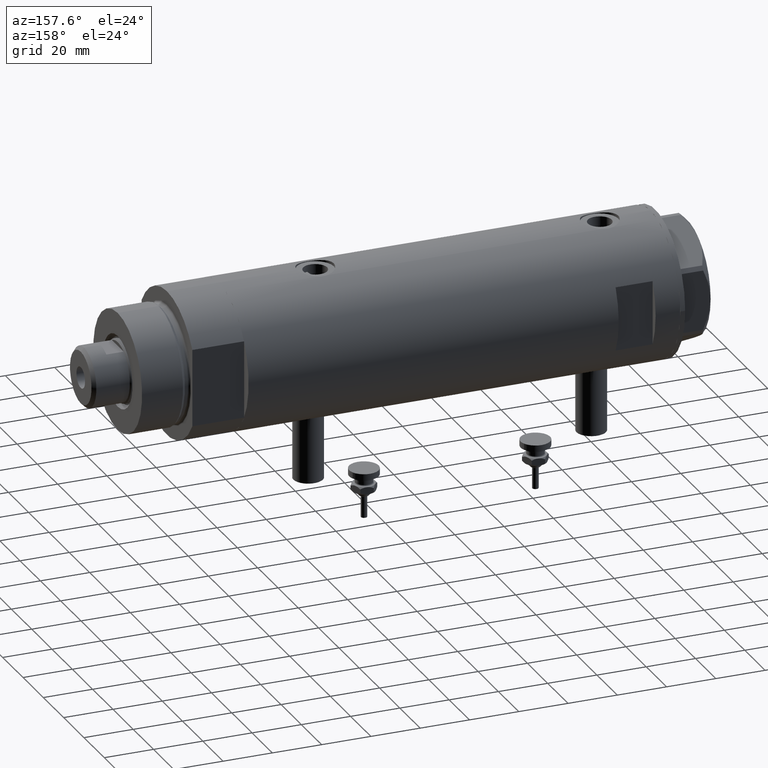
[diagram: clean part render]
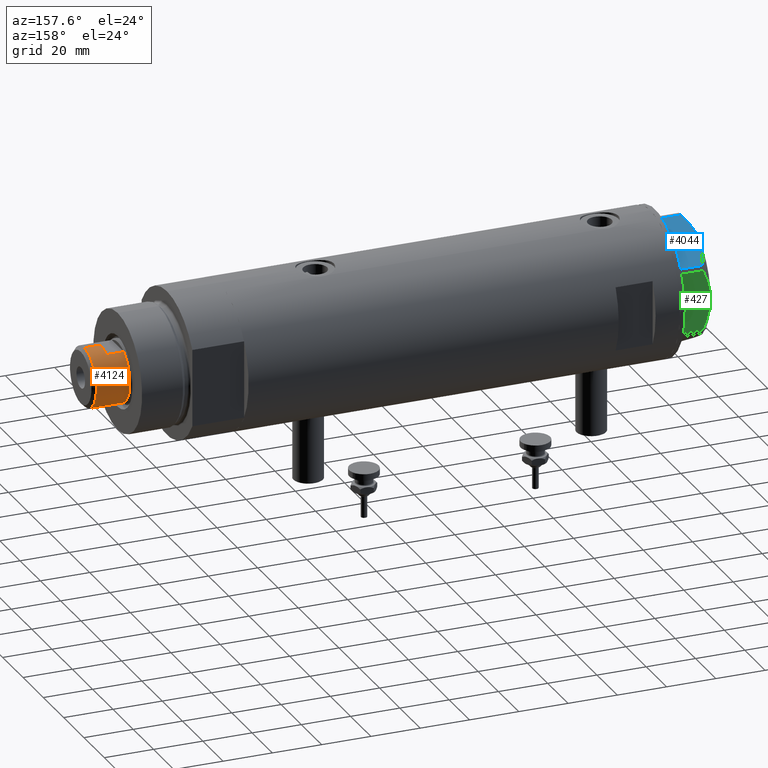
[diagram: same view with three faces highlighted in distinct colors, each labeled with its STEP entity id]
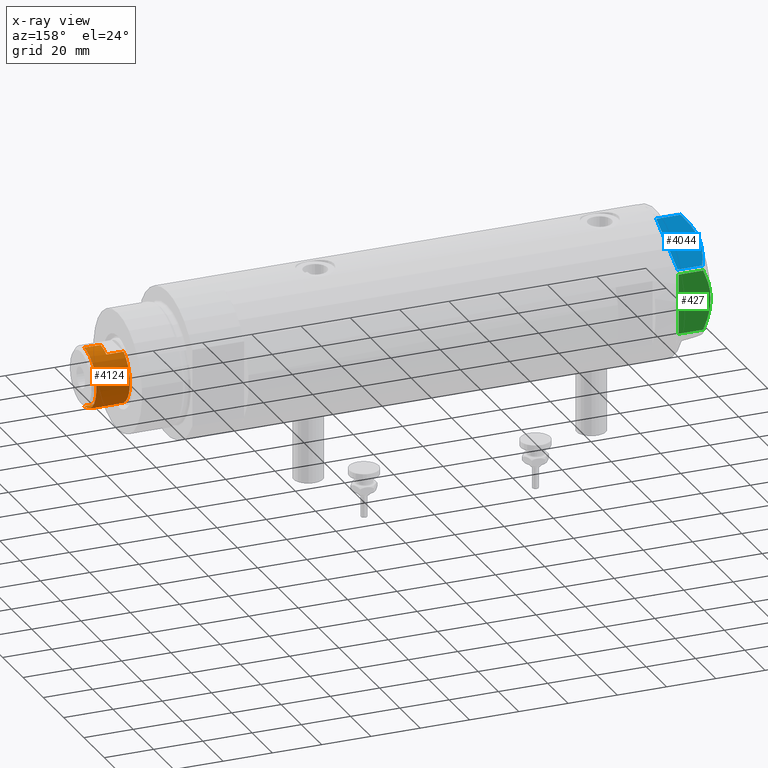
[diagram: x-ray of the same camera — body ghosted, the three highlighted faces saturated]
A machine part, auxiliary view with three faces highlighted in distinct colors.
The next image is the same camera in x-ray (body ghosted, the three faces saturated) — at least one of them is partly hidden behind the body in this view.
Their STEP definitions:

[orange] entity #4124 — the highlighted cylindrical surface (edge-blend (fillet) strip) has radius 12 mm, axis along (-1, -0, 0).
#280 = VERTEX_POINT ( 'NONE', #2966 ) ;
#306 = ORIENTED_EDGE ( 'NONE', *, *, #1332, .T. ) ;
#368 = EDGE_CURVE ( 'NONE', #4536, #3395, #4042, .T. ) ;
#541 = CARTESIAN_POINT ( 'NONE',  ( 0.000000000000000000, 0.000000000000000000, 199.6999999999999886 ) ) ;
#563 = CARTESIAN_POINT ( 'NONE',  ( 10.48861764008966269, 5.830000000000000071, 199.6999999999999886 ) ) ;
#595 = CIRCLE ( 'NONE', #1211, 12.00000000000000178 ) ;
#614 = CARTESIAN_POINT ( 'NONE',  ( 0.000000000000000000, 0.000000000000000000, 206.2999999999999829 ) ) ;
#650 = ORIENTED_EDGE ( 'NONE', *, *, #3705, .T. ) ;
#698 = CIRCLE ( 'NONE', #3484, 12.00000000000000000 ) ;
#784 = CARTESIAN_POINT ( 'NONE',  ( 0.000000000000000000, 0.000000000000000000, 192.6999999999999886 ) ) ;
#943 = DIRECTION ( 'NONE',  ( 1.000000000000000000, 0.000000000000000000, 0.000000000000000000 ) ) ;
#959 = CARTESIAN_POINT ( 'NONE',  ( 12.00000000000000000, 1.469576158976823947E-15, 206.2999999999999829 ) ) ;
#1130 = VERTEX_POINT ( 'NONE', #3679 ) ;
#1174 = ORIENTED_EDGE ( 'NONE', *, *, #5272, .F. ) ;
#1211 = AXIS2_PLACEMENT_3D ( 'NONE', #1407, #1460, #5109 ) ;
#1216 = DIRECTION ( 'NONE',  ( -1.000000000000000000, 0.000000000000000000, 0.000000000000000000 ) ) ;
#1332 = EDGE_CURVE ( 'NONE', #4536, #3561, #698, .T. ) ;
#1407 = CARTESIAN_POINT ( 'NONE',  ( 0.000000000000000000, 0.000000000000000000, 199.6999999999999886 ) ) ;
#1460 = DIRECTION ( 'NONE',  ( 0.000000000000000000, 0.000000000000000000, 1.000000000000000000 ) ) ;
#1546 = EDGE_CURVE ( 'NONE', #5284, #280, #595, .T. ) ;
#1788 = VECTOR ( 'NONE', #5004, 1000.000000000000000 ) ;
#1815 = DIRECTION ( 'NONE',  ( -0.000000000000000000, -0.000000000000000000, -1.000000000000000000 ) ) ;
#2110 = CARTESIAN_POINT ( 'NONE',  ( -12.00000000000000000, 0.000000000000000000, 206.2999999999999829 ) ) ;
#2204 = CARTESIAN_POINT ( 'NONE',  ( -12.00000000000000355, 0.000000000000000000, 199.6999999999999886 ) ) ;
#2247 = CIRCLE ( 'NONE', #4935, 12.00000000000001066 ) ;
#2433 = EDGE_CURVE ( 'NONE', #5770, #1130, #2247, .T. ) ;
#2607 = ORIENTED_EDGE ( 'NONE', *, *, #1546, .T. ) ;
#2714 = CARTESIAN_POINT ( 'NONE',  ( -12.00000000000000000, 0.000000000000000000, 199.6999999999999886 ) ) ;
#2852 = VECTOR ( 'NONE', #3028, 1000.000000000000000 ) ;
#2886 = DIRECTION ( 'NONE',  ( -0.000000000000000000, -0.000000000000000000, -1.000000000000000000 ) ) ;
#2966 = CARTESIAN_POINT ( 'NONE',  ( 10.48861764008966269, 5.830000000000000071, 199.6999999999999886 ) ) ;
#2997 = DIRECTION ( 'NONE',  ( 1.000000000000000000, 0.000000000000000000, 0.000000000000000000 ) ) ;
#3028 = DIRECTION ( 'NONE',  ( -0.000000000000000000, -0.000000000000000000, -1.000000000000000000 ) ) ;
#3063 = CARTESIAN_POINT ( 'NONE',  ( 12.00000000000000355, 1.469576158976824342E-15, 199.6999999999999886 ) ) ;
#3071 = ORIENTED_EDGE ( 'NONE', *, *, #4928, .T. ) ;
#3325 = VECTOR ( 'NONE', #2886, 1000.000000000000000 ) ;
#3381 = DIRECTION ( 'NONE',  ( 0.000000000000000000, 0.000000000000000000, -1.000000000000000000 ) ) ;
#3395 = VERTEX_POINT ( 'NONE', #2204 ) ;
#3419 = DIRECTION ( 'NONE',  ( 1.000000000000000000, 0.000000000000000000, 0.000000000000000000 ) ) ;
#3433 = ORIENTED_EDGE ( 'NONE', *, *, #368, .F. ) ;
#3461 = EDGE_LOOP ( 'NONE', ( #306, #3071, #2607, #4101, #5794, #1174, #650, #3433 ) ) ;
#3479 = CARTESIAN_POINT ( 'NONE',  ( 0.000000000000000000, 0.000000000000000000, 199.6999999999999886 ) ) ;
#3484 = AXIS2_PLACEMENT_3D ( 'NONE', #614, #3381, #2997 ) ;
#3527 = CARTESIAN_POINT ( 'NONE',  ( -10.48861764008966269, 5.829999999999999183, 199.6999999999999886 ) ) ;
#3561 = VERTEX_POINT ( 'NONE', #959 ) ;
#3648 = CARTESIAN_POINT ( 'NONE',  ( 12.00000000000000000, 1.469576158976823947E-15, 199.6999999999999886 ) ) ;
#3666 = DIRECTION ( 'NONE',  ( 0.000000000000000000, 0.000000000000000000, 1.000000000000000000 ) ) ;
#3679 = CARTESIAN_POINT ( 'NONE',  ( -10.48861764008966446, 5.830000000000016946, 192.6999999999999886 ) ) ;
#3705 = EDGE_CURVE ( 'NONE', #5861, #3395, #4948, .T. ) ;
#3762 = CARTESIAN_POINT ( 'NONE',  ( 10.48861764008966269, 5.830000000000000071, 192.6999999999999886 ) ) ;
#3775 = VECTOR ( 'NONE', #1815, 1000.000000000000000 ) ;
#3874 = FACE_OUTER_BOUND ( 'NONE', #3461, .T. ) ;
#4042 = LINE ( 'NONE', #2714, #3775 ) ;
#4101 = ORIENTED_EDGE ( 'NONE', *, *, #4803, .T. ) ;
#4124 = ADVANCED_FACE ( 'NONE', ( #3874 ), #5695, .T. ) ;
#4536 = VERTEX_POINT ( 'NONE', #2110 ) ;
#4674 = LINE ( 'NONE', #563, #3325 ) ;
#4744 = AXIS2_PLACEMENT_3D ( 'NONE', #541, #3666, #943 ) ;
#4803 = EDGE_CURVE ( 'NONE', #280, #5770, #4674, .T. ) ;
#4928 = EDGE_CURVE ( 'NONE', #3561, #5284, #5084, .T. ) ;
#4935 = AXIS2_PLACEMENT_3D ( 'NONE', #784, #5221, #3419 ) ;
#4948 = CIRCLE ( 'NONE', #4744, 12.00000000000000178 ) ;
#4951 = AXIS2_PLACEMENT_3D ( 'NONE', #3479, #5302, #1216 ) ;
#5004 = DIRECTION ( 'NONE',  ( -0.000000000000000000, -0.000000000000000000, -1.000000000000000000 ) ) ;
#5084 = LINE ( 'NONE', #3648, #1788 ) ;
#5109 = DIRECTION ( 'NONE',  ( 1.000000000000000000, 0.000000000000000000, 0.000000000000000000 ) ) ;
#5221 = DIRECTION ( 'NONE',  ( 0.000000000000000000, 0.000000000000000000, 1.000000000000000000 ) ) ;
#5272 = EDGE_CURVE ( 'NONE', #5861, #1130, #5318, .T. ) ;
#5284 = VERTEX_POINT ( 'NONE', #3063 ) ;
#5302 = DIRECTION ( 'NONE',  ( -0.000000000000000000, -0.000000000000000000, -1.000000000000000000 ) ) ;
#5318 = LINE ( 'NONE', #5865, #2852 ) ;
#5695 = CYLINDRICAL_SURFACE ( 'NONE', #4951, 12.00000000000000000 ) ;
#5770 = VERTEX_POINT ( 'NONE', #3762 ) ;
#5794 = ORIENTED_EDGE ( 'NONE', *, *, #2433, .T. ) ;
#5861 = VERTEX_POINT ( 'NONE', #3527 ) ;
#5865 = CARTESIAN_POINT ( 'NONE',  ( -10.48861764008966269, 5.829999999999999183, 199.6999999999999886 ) ) ;

[blue] entity #4044 — the highlighted planar face has unit normal (-0, -0.5, -0.866).
#8 = ORIENTED_EDGE ( 'NONE', *, *, #3482, .T. ) ;
#264 = CARTESIAN_POINT ( 'NONE',  ( 19.07486218897005870, -15.54523556316577171, 11.39727285399141365 ) ) ;
#377 = VERTEX_POINT ( 'NONE', #5578 ) ;
#523 = EDGE_CURVE ( 'NONE', #2332, #377, #5370, .T. ) ;
#588 = FACE_OUTER_BOUND ( 'NONE', #3115, .T. ) ;
#663 = CARTESIAN_POINT ( 'NONE',  ( 0.9699484522386113694, -25.99811238272281955, 9.983800287807545359 ) ) ;
#677 = CARTESIAN_POINT ( 'NONE',  ( 15.11535457301044616, -17.83125835109845880, 12.70765172847700342 ) ) ;
#864 = DIRECTION ( 'NONE',  ( 0.8660254037844345998, 0.5000000000000069944, 0.000000000000000000 ) ) ;
#1006 = VECTOR ( 'NONE', #864, 999.9999999999998863 ) ;
#1009 = VECTOR ( 'NONE', #3655, 1000.000000000000000 ) ;
#1085 = EDGE_CURVE ( 'NONE', #5248, #5255, #2281, .T. ) ;
#1156 = CARTESIAN_POINT ( 'NONE',  ( 6.946777556903778184, -22.54738849024392877, 12.42689993760377654 ) ) ;
#1182 = CARTESIAN_POINT ( 'NONE',  ( 10.58093321976977030, -20.44920774001120023, 12.98168640760949799 ) ) ;
#1402 = EDGE_CURVE ( 'NONE', #377, #2722, #4181, .T. ) ;
#1438 = ORIENTED_EDGE ( 'NONE', *, *, #1085, .T. ) ;
#1803 = LINE ( 'NONE', #4561, #1009 ) ;
#2043 = CARTESIAN_POINT ( 'NONE',  ( 4.320186229910045306, -24.06385169993492568, 11.62937486882610649 ) ) ;
#2281 = LINE ( 'NONE', #3178, #1006 ) ;
#2332 = VERTEX_POINT ( 'NONE', #2858 ) ;
#2337 = ORIENTED_EDGE ( 'NONE', *, *, #1402, .F. ) ;
#2462 = CARTESIAN_POINT ( 'NONE',  ( 17.32831362639728923, -16.55360584591992890, 12.04068176582933525 ) ) ;
#2504 = CARTESIAN_POINT ( 'NONE',  ( 1.854543075583504180E-13, -26.55811238272274366, 13.00000000000000000 ) ) ;
#2570 = CARTESIAN_POINT ( 'NONE',  ( 9.656518383329991906, -20.98291889467260773, 12.90784227772843451 ) ) ;
#2722 = VERTEX_POINT ( 'NONE', #4585 ) ;
#2858 = CARTESIAN_POINT ( 'NONE',  ( 0.9699484522386113694, -25.99811238272281955, 9.983800287807545359 ) ) ;
#2974 = CARTESIAN_POINT ( 'NONE',  ( 11.50000000000018296, -19.91858428704203732, 13.00000000000000000 ) ) ;
#2986 = CARTESIAN_POINT ( 'NONE',  ( 9.197898616903064095, -21.24770314027487927, 12.85271263895580240 ) ) ;
#3115 = EDGE_LOOP ( 'NONE', ( #3727, #4382, #1438, #8, #2337 ) ) ;
#3142 = CARTESIAN_POINT ( 'NONE',  ( 21.20080365460329475, -14.31782268570100491, 10.43131750950939107 ) ) ;
#3178 = CARTESIAN_POINT ( 'NONE',  ( 1.854543075583504180E-13, -26.55811238272274366, 0.000000000000000000 ) ) ;
#3421 = DIRECTION ( 'NONE',  ( -0.5000000000000069944, 0.8660254037844345998, 0.000000000000000000 ) ) ;
#3482 = EDGE_CURVE ( 'NONE', #5255, #2722, #1803, .T. ) ;
#3536 = CARTESIAN_POINT ( 'NONE',  ( 22.03005154776154129, -13.83905619136115384, 9.983800287807621743 ) ) ;
#3655 = DIRECTION ( 'NONE',  ( 0.000000000000000000, 0.000000000000000000, 1.000000000000000000 ) ) ;
#3727 = ORIENTED_EDGE ( 'NONE', *, *, #523, .F. ) ;
#3896 = LINE ( 'NONE', #5263, #5433 ) ;
#3898 = CARTESIAN_POINT ( 'NONE',  ( 17.77001848220202618, -16.29858742851869735, 11.89212886775844780 ) ) ;
#3960 = CARTESIAN_POINT ( 'NONE',  ( 0.9699484522387533669, -25.99811238272273428, 0.000000000000000000 ) ) ;
#4044 = ADVANCED_FACE ( 'NONE', ( #588 ), #5223, .F. ) ;
#4181 = B_SPLINE_CURVE_WITH_KNOTS ( 'NONE', 3,
 ( #2974, #4791, #677, #2462, #3898, #4371, #264, #5746, #3142, #3536 ),
 .UNSPECIFIED., .F., .F.,
 ( 4, 2, 2, 2, 4 ),
 ( 0.01376519981810312224, 0.01998941321701590279, 0.02154546656674409533, 0.02310151991647228786, 0.02621362661592867294 ),
 .UNSPECIFIED. ) ;
#4324 = CARTESIAN_POINT ( 'NONE',  ( 2.626494320835804253, -25.04170517956326236, 10.87778242614345636 ) ) ;
#4371 = CARTESIAN_POINT ( 'NONE',  ( 18.64279229058406173, -15.79469123530766517, 11.57055225522972286 ) ) ;
#4382 = ORIENTED_EDGE ( 'NONE', *, *, #5142, .T. ) ;
#4448 = CARTESIAN_POINT ( 'NONE',  ( 11.04134848610952879, -20.18338686205092358, 13.00000000000009059 ) ) ;
#4509 = CARTESIAN_POINT ( 'NONE',  ( 11.50000000000018296, -19.91858428704203732, 13.00000000000000000 ) ) ;
#4561 = CARTESIAN_POINT ( 'NONE',  ( 22.03005154776153773, -13.83905619136115739, 13.00000000000000000 ) ) ;
#4585 = CARTESIAN_POINT ( 'NONE',  ( 22.03005154776154129, -13.83905619136115384, 9.983800287807621743 ) ) ;
#4791 = CARTESIAN_POINT ( 'NONE',  ( 13.32175508098997518, -18.86679350063487703, 13.00000000000009059 ) ) ;
#4804 = CARTESIAN_POINT ( 'NONE',  ( 7.836767740116727943, -22.03355241838979595, 12.63731396715694544 ) ) ;
#4943 = CARTESIAN_POINT ( 'NONE',  ( 22.03005154776153773, -13.83905619136115561, 0.000000000000000000 ) ) ;
#5142 = EDGE_CURVE ( 'NONE', #2332, #5248, #3896, .T. ) ;
#5223 = PLANE ( 'NONE',  #5316 ) ;
#5248 = VERTEX_POINT ( 'NONE', #3960 ) ;
#5249 = DIRECTION ( 'NONE',  ( -0.8660254037844345998, -0.5000000000000069944, 0.000000000000000000 ) ) ;
#5255 = VERTEX_POINT ( 'NONE', #4943 ) ;
#5263 = CARTESIAN_POINT ( 'NONE',  ( 0.9699484522387532559, -25.99811238272273428, 13.00000000000000000 ) ) ;
#5316 = AXIS2_PLACEMENT_3D ( 'NONE', #2504, #3421, #5249 ) ;
#5370 = B_SPLINE_CURVE_WITH_KNOTS ( 'NONE', 3,
 ( #663, #4324, #2043, #1156, #4804, #2986, #2570, #1182, #4448, #4509 ),
 .UNSPECIFIED., .F., .F.,
 ( 4, 2, 2, 2, 4 ),
 ( 0.001228959670438509785, 0.007497079744270810156, 0.01063113978118696706, 0.01219816979964504465, 0.01376519981810312224 ),
 .UNSPECIFIED. ) ;
#5433 = VECTOR ( 'NONE', #5714, 1000.000000000000000 ) ;
#5578 = CARTESIAN_POINT ( 'NONE',  ( 11.50000000000018296, -19.91858428704203732, 13.00000000000000000 ) ) ;
#5714 = DIRECTION ( 'NONE',  ( 0.000000000000000000, 0.000000000000000000, -1.000000000000000000 ) ) ;
#5746 = CARTESIAN_POINT ( 'NONE',  ( 20.35958612119338085, -14.80349985506226673, 10.84420102443838552 ) ) ;

[green] entity #427 — the highlighted planar face has unit normal (0, -1, 0).
#97 = CARTESIAN_POINT ( 'NONE',  ( 23.00000000000006750, -11.20825071633899483, 10.42817330637845608 ) ) ;
#372 = DIRECTION ( 'NONE',  ( -1.032024811306395780E-14, 1.000000000000000000, 0.000000000000000000 ) ) ;
#393 = CARTESIAN_POINT ( 'NONE',  ( 22.99999999999992184, 2.643615312305319875, 12.85430456063626714 ) ) ;
#427 = ADVANCED_FACE ( 'NONE', ( #2965 ), #602, .F. ) ;
#572 = EDGE_CURVE ( 'NONE', #673, #2002, #4161, .T. ) ;
#602 = PLANE ( 'NONE',  #2345 ) ;
#657 = EDGE_CURVE ( 'NONE', #5277, #1035, #2660, .T. ) ;
#673 = VERTEX_POINT ( 'NONE', #5483 ) ;
#764 = CARTESIAN_POINT ( 'NONE',  ( 22.99999999999985434, 9.734726261263476843, 11.02892470009566139 ) ) ;
#849 = CARTESIAN_POINT ( 'NONE',  ( 22.99999999999984723, 10.22738952213813590, 10.83247031367476687 ) ) ;
#876 = EDGE_CURVE ( 'NONE', #2892, #5277, #5603, .T. ) ;
#1035 = VERTEX_POINT ( 'NONE', #4346 ) ;
#1057 = CARTESIAN_POINT ( 'NONE',  ( 23.00000000000002132, -7.239756182922042704, 11.89218606342284978 ) ) ;
#1111 = CARTESIAN_POINT ( 'NONE',  ( 23.00000000000007461, -12.15905619136117544, 9.983800287807614637 ) ) ;
#1117 = CARTESIAN_POINT ( 'NONE',  ( 22.99999999999995026, 2.373657066004705010E-13, 13.00000000000000000 ) ) ;
#1188 = CARTESIAN_POINT ( 'NONE',  ( 23.00000000000008527, -13.27905619136115867, 13.00000000000000000 ) ) ;
#1201 = EDGE_CURVE ( 'NONE', #1035, #2002, #5540, .T. ) ;
#1443 = CARTESIAN_POINT ( 'NONE',  ( 22.99999999999982236, 12.15905619136166571, 13.00000000000000000 ) ) ;
#1636 = ORIENTED_EDGE ( 'NONE', *, *, #4700, .F. ) ;
#1949 = CARTESIAN_POINT ( 'NONE',  ( 22.99999999999996447, -2.122900714017910584, 13.00000000000008882 ) ) ;
#2002 = VERTEX_POINT ( 'NONE', #2244 ) ;
#2137 = CARTESIAN_POINT ( 'NONE',  ( 22.99999999999992539, 2.119709279062088836, 12.90853521217320043 ) ) ;
#2170 = CARTESIAN_POINT ( 'NONE',  ( 22.99999999999984368, 11.20155944044835472, 10.42110268263274264 ) ) ;
#2185 = B_SPLINE_CURVE_WITH_KNOTS ( 'NONE', 3,
 ( #4614, #97, #3816, #3847, #4292, #1057, #3336, #4643, #1949, #1117 ),
 .UNSPECIFIED., .F., .F.,
 ( 4, 2, 2, 2, 4 ),
 ( 0.03516523594057416324, 0.03831677594541234994, 0.03989254594783143981, 0.04146831595025052969, 0.04777139595992689614 ),
 .UNSPECIFIED. ) ;
#2244 = CARTESIAN_POINT ( 'NONE',  ( 22.99999999999982236, 12.15905619136166038, 9.983800287807609308 ) ) ;
#2248 = VECTOR ( 'NONE', #4673, 1000.000000000000000 ) ;
#2327 = ORIENTED_EDGE ( 'NONE', *, *, #657, .T. ) ;
#2345 = AXIS2_PLACEMENT_3D ( 'NONE', #1188, #2426, #4243 ) ;
#2426 = DIRECTION ( 'NONE',  ( -1.000000000000000000, -1.032024811306395780E-14, 0.000000000000000000 ) ) ;
#2660 = LINE ( 'NONE', #4479, #2919 ) ;
#2767 = DIRECTION ( 'NONE',  ( 0.000000000000000000, 0.000000000000000000, 1.000000000000000000 ) ) ;
#2892 = VERTEX_POINT ( 'NONE', #1111 ) ;
#2919 = VECTOR ( 'NONE', #372, 1000.000000000000000 ) ;
#2965 = FACE_OUTER_BOUND ( 'NONE', #3772, .T. ) ;
#3100 = CARTESIAN_POINT ( 'NONE',  ( 22.99999999999990052, 5.228918809624289565, 12.43333703384985256 ) ) ;
#3336 = CARTESIAN_POINT ( 'NONE',  ( 23.00000000000001421, -6.734330413511261604, 12.03938974125266448 ) ) ;
#3453 = CARTESIAN_POINT ( 'NONE',  ( 22.99999999999986500, 8.252113629125442884, 11.58164206268022056 ) ) ;
#3519 = CARTESIAN_POINT ( 'NONE',  ( 22.99999999999990763, 4.203926054642130872, 12.64168122312251263 ) ) ;
#3772 = EDGE_LOOP ( 'NONE', ( #1636, #3851, #2327, #5029, #4195 ) ) ;
#3787 = VECTOR ( 'NONE', #2767, 1000.000000000000000 ) ;
#3816 = CARTESIAN_POINT ( 'NONE',  ( 23.00000000000005684, -10.23890159976106240, 10.84081242829091529 ) ) ;
#3847 = CARTESIAN_POINT ( 'NONE',  ( 23.00000000000004263, -8.748091966971225375, 11.39681897828457124 ) ) ;
#3851 = ORIENTED_EDGE ( 'NONE', *, *, #876, .T. ) ;
#3980 = CARTESIAN_POINT ( 'NONE',  ( 22.99999999999995026, 2.373657066004705010E-13, 13.00000000000000000 ) ) ;
#4015 = CARTESIAN_POINT ( 'NONE',  ( 22.99999999999982236, 12.15905619136166038, 9.983800287807609308 ) ) ;
#4161 = B_SPLINE_CURVE_WITH_KNOTS ( 'NONE', 3,
 ( #3980, #4835, #5279, #2137, #393, #3519, #3100, #4873, #3453, #764, #849, #2170, #5833, #4015 ),
 .UNSPECIFIED., .F., .F.,
 ( 4, 2, 2, 2, 2, 2, 4 ),
 ( 0.04777139595992689614, 0.04934380568070229761, 0.05091621540147769215, 0.05406103484302849510, 0.05720585428457929111, 0.05877826400535468565, 0.06035067372613008713 ),
 .UNSPECIFIED. ) ;
#4195 = ORIENTED_EDGE ( 'NONE', *, *, #572, .F. ) ;
#4243 = DIRECTION ( 'NONE',  ( 1.032024811306395780E-14, -1.000000000000000000, 0.000000000000000000 ) ) ;
#4292 = CARTESIAN_POINT ( 'NONE',  ( 23.00000000000003197, -8.246028007352199651, 11.57113180864690705 ) ) ;
#4346 = CARTESIAN_POINT ( 'NONE',  ( 22.99999999999982236, 12.15905619136166571, 0.000000000000000000 ) ) ;
#4479 = CARTESIAN_POINT ( 'NONE',  ( 23.00000000000008527, -13.27905619136115867, 0.000000000000000000 ) ) ;
#4614 = CARTESIAN_POINT ( 'NONE',  ( 23.00000000000007461, -12.15905619136117544, 9.983800287807614637 ) ) ;
#4643 = CARTESIAN_POINT ( 'NONE',  ( 22.99999999999999289, -4.194757081058820170, 12.70300035152520479 ) ) ;
#4673 = DIRECTION ( 'NONE',  ( 0.000000000000000000, 0.000000000000000000, -1.000000000000000000 ) ) ;
#4700 = EDGE_CURVE ( 'NONE', #2892, #673, #2185, .T. ) ;
#4796 = CARTESIAN_POINT ( 'NONE',  ( 23.00000000000007461, -12.15905619136117721, 13.00000000000000000 ) ) ;
#4835 = CARTESIAN_POINT ( 'NONE',  ( 22.99999999999994671, 0.5295934231899315225, 13.00000000000009770 ) ) ;
#4853 = CARTESIAN_POINT ( 'NONE',  ( 23.00000000000007461, -12.15905619136117721, 0.000000000000000000 ) ) ;
#4873 = CARTESIAN_POINT ( 'NONE',  ( 22.99999999999987210, 7.253003311474555126, 11.90327681034763430 ) ) ;
#5029 = ORIENTED_EDGE ( 'NONE', *, *, #1201, .T. ) ;
#5277 = VERTEX_POINT ( 'NONE', #4853 ) ;
#5279 = CARTESIAN_POINT ( 'NONE',  ( 22.99999999999993960, 1.063773509315898647, 12.98143808360683060 ) ) ;
#5483 = CARTESIAN_POINT ( 'NONE',  ( 22.99999999999995026, 2.373657066004705010E-13, 13.00000000000000000 ) ) ;
#5540 = LINE ( 'NONE', #1443, #3787 ) ;
#5603 = LINE ( 'NONE', #4796, #2248 ) ;
#5833 = CARTESIAN_POINT ( 'NONE',  ( 22.99999999999982947, 11.68282849742354301, 10.20637235269540888 ) ) ;